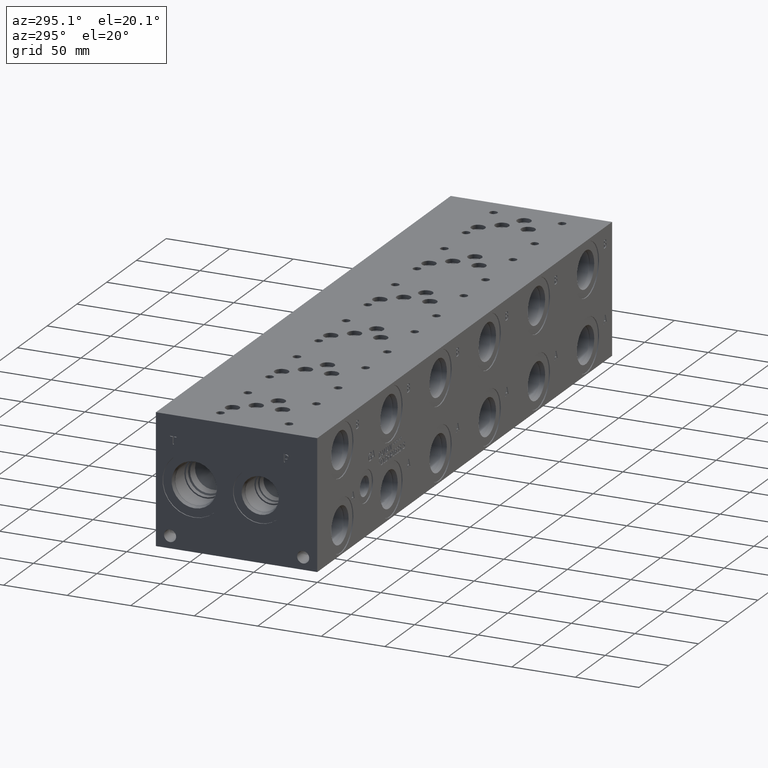
[diagram: clean part render]
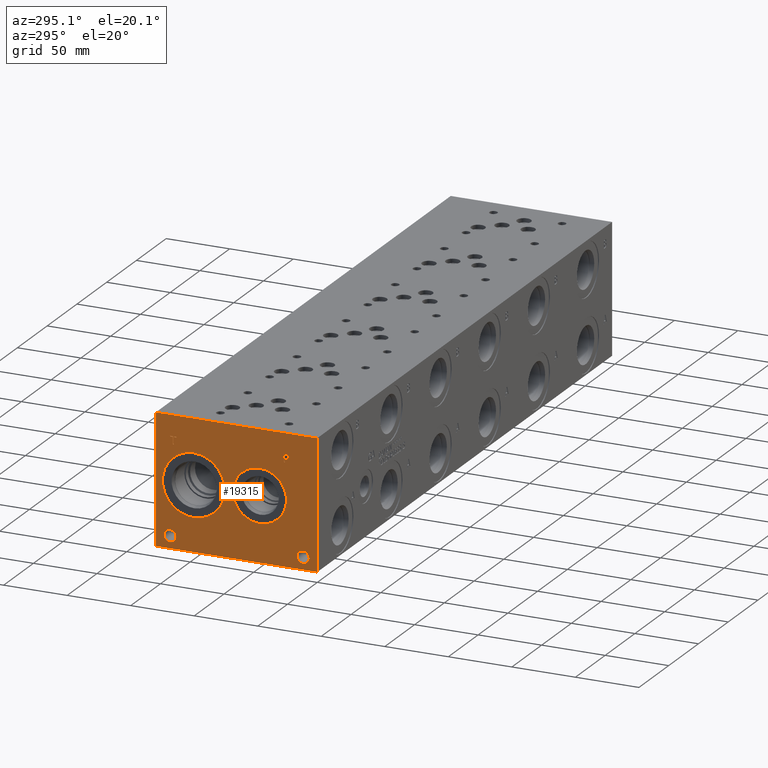
[diagram: same view with one face highlighted and labeled with its STEP entity id]
A machine part, auxiliary view. The second image highlights one B-rep face of the part: STEP entity #19315.
In plain terms, the highlighted planar face has unit normal (-1, 0, 0).
Its self-contained STEP definition (entity closure, byte-faithful):
#591=CIRCLE('',#20347,24.5618);
#592=CIRCLE('',#20348,24.5618);
#593=CIRCLE('',#20349,21.0185);
#594=CIRCLE('',#20350,21.0185);
#595=CIRCLE('',#20351,4.7625);
#596=CIRCLE('',#20352,4.7625);
#597=CIRCLE('',#20353,4.7625);
#598=CIRCLE('',#20354,4.7625);
#1463=B_SPLINE_CURVE_WITH_KNOTS('',2,(#29302,#29303,#29304,#29305),
 .UNSPECIFIED.,.F.,.F.,(3,1,3),(0.,1.,2.),.UNSPECIFIED.);
#1465=B_SPLINE_CURVE_WITH_KNOTS('',2,(#29323,#29324,#29325,#29326),
 .UNSPECIFIED.,.F.,.F.,(3,1,3),(0.,1.,2.),.UNSPECIFIED.);
#1467=B_SPLINE_CURVE_WITH_KNOTS('',2,(#29372,#29373,#29374,#29375),
 .UNSPECIFIED.,.F.,.F.,(3,1,3),(0.,1.,2.),.UNSPECIFIED.);
#1469=B_SPLINE_CURVE_WITH_KNOTS('',2,(#29390,#29391,#29392,#29393),
 .UNSPECIFIED.,.F.,.F.,(3,1,3),(0.,1.,2.),.UNSPECIFIED.);
#1763=FACE_BOUND('',#3227,.T.);
#1764=FACE_BOUND('',#3228,.T.);
#1765=FACE_BOUND('',#3229,.T.);
#1766=FACE_BOUND('',#3230,.T.);
#1767=FACE_BOUND('',#3231,.T.);
#1768=FACE_BOUND('',#3232,.T.);
#2103=FACE_OUTER_BOUND('',#3226,.T.);
#3226=EDGE_LOOP('',(#13758,#13759,#13760,#13761));
#3227=EDGE_LOOP('',(#13762,#13763));
#3228=EDGE_LOOP('',(#13764,#13765));
#3229=EDGE_LOOP('',(#13766,#13767));
#3230=EDGE_LOOP('',(#13768,#13769));
#3231=EDGE_LOOP('',(#13770,#13771,#13772,#13773,#13774,#13775,#13776,#13777));
#3232=EDGE_LOOP('',(#13778,#13779,#13780,#13781,#13782,#13783,#13784,#13785,
#13786));
#4249=LINE('',#26303,#5920);
#4820=LINE('',#29335,#6491);
#4823=LINE('',#29341,#6494);
#4826=LINE('',#29347,#6497);
#4829=LINE('',#29353,#6500);
#4832=LINE('',#29359,#6503);
#4836=LINE('',#29401,#6507);
#4837=LINE('',#29403,#6508);
#4838=LINE('',#29404,#6509);
#4839=LINE('',#29423,#6510);
#4840=LINE('',#29425,#6511);
#4841=LINE('',#29427,#6512);
#4842=LINE('',#29429,#6513);
#4843=LINE('',#29431,#6514);
#4844=LINE('',#29433,#6515);
#4845=LINE('',#29435,#6516);
#4846=LINE('',#29436,#6517);
#5920=VECTOR('',#21702,10.);
#6491=VECTOR('',#22569,10.);
#6494=VECTOR('',#22574,10.);
#6497=VECTOR('',#22579,10.);
#6500=VECTOR('',#22584,10.);
#6503=VECTOR('',#22589,10.);
#6507=VECTOR('',#22597,10.);
#6508=VECTOR('',#22598,10.);
#6509=VECTOR('',#22599,10.);
#6510=VECTOR('',#22616,10.);
#6511=VECTOR('',#22617,10.);
#6512=VECTOR('',#22618,10.);
#6513=VECTOR('',#22619,10.);
#6514=VECTOR('',#22620,10.);
#6515=VECTOR('',#22621,10.);
#6516=VECTOR('',#22622,10.);
#6517=VECTOR('',#22623,10.);
#7577=VERTEX_POINT('',#26296);
#7580=VERTEX_POINT('',#26301);
#8279=VERTEX_POINT('',#29300);
#8280=VERTEX_POINT('',#29301);
#8283=VERTEX_POINT('',#29322);
#8285=VERTEX_POINT('',#29334);
#8287=VERTEX_POINT('',#29340);
#8289=VERTEX_POINT('',#29346);
#8291=VERTEX_POINT('',#29352);
#8293=VERTEX_POINT('',#29358);
#8295=VERTEX_POINT('',#29371);
#8297=VERTEX_POINT('',#29400);
#8298=VERTEX_POINT('',#29402);
#8299=VERTEX_POINT('',#29405);
#8300=VERTEX_POINT('',#29406);
#8301=VERTEX_POINT('',#29409);
#8302=VERTEX_POINT('',#29410);
#8303=VERTEX_POINT('',#29413);
#8304=VERTEX_POINT('',#29414);
#8305=VERTEX_POINT('',#29417);
#8306=VERTEX_POINT('',#29418);
#8307=VERTEX_POINT('',#29421);
#8308=VERTEX_POINT('',#29422);
#8309=VERTEX_POINT('',#29424);
#8310=VERTEX_POINT('',#29426);
#8311=VERTEX_POINT('',#29428);
#8312=VERTEX_POINT('',#29430);
#8313=VERTEX_POINT('',#29432);
#8314=VERTEX_POINT('',#29434);
#9551=EDGE_CURVE('',#7577,#7580,#4249,.T.);
#10411=EDGE_CURVE('',#8279,#8280,#1463,.T.);
#10415=EDGE_CURVE('',#8283,#8279,#1465,.T.);
#10418=EDGE_CURVE('',#8285,#8283,#4820,.T.);
#10421=EDGE_CURVE('',#8287,#8285,#4823,.T.);
#10424=EDGE_CURVE('',#8289,#8287,#4826,.T.);
#10427=EDGE_CURVE('',#8291,#8289,#4829,.T.);
#10430=EDGE_CURVE('',#8293,#8291,#4832,.T.);
#10433=EDGE_CURVE('',#8295,#8293,#1467,.T.);
#10436=EDGE_CURVE('',#8280,#8295,#1469,.T.);
#10438=EDGE_CURVE('',#8297,#7577,#4836,.T.);
#10439=EDGE_CURVE('',#8298,#7580,#4837,.T.);
#10440=EDGE_CURVE('',#8297,#8298,#4838,.T.);
#10441=EDGE_CURVE('',#8299,#8300,#591,.T.);
#10442=EDGE_CURVE('',#8300,#8299,#592,.T.);
#10443=EDGE_CURVE('',#8301,#8302,#593,.T.);
#10444=EDGE_CURVE('',#8302,#8301,#594,.T.);
#10445=EDGE_CURVE('',#8303,#8304,#595,.T.);
#10446=EDGE_CURVE('',#8304,#8303,#596,.T.);
#10447=EDGE_CURVE('',#8305,#8306,#597,.T.);
#10448=EDGE_CURVE('',#8306,#8305,#598,.T.);
#10449=EDGE_CURVE('',#8307,#8308,#4839,.T.);
#10450=EDGE_CURVE('',#8308,#8309,#4840,.T.);
#10451=EDGE_CURVE('',#8309,#8310,#4841,.T.);
#10452=EDGE_CURVE('',#8310,#8311,#4842,.T.);
#10453=EDGE_CURVE('',#8311,#8312,#4843,.T.);
#10454=EDGE_CURVE('',#8312,#8313,#4844,.T.);
#10455=EDGE_CURVE('',#8313,#8314,#4845,.T.);
#10456=EDGE_CURVE('',#8314,#8307,#4846,.T.);
#13758=ORIENTED_EDGE('',*,*,#10438,.T.);
#13759=ORIENTED_EDGE('',*,*,#9551,.T.);
#13760=ORIENTED_EDGE('',*,*,#10439,.F.);
#13761=ORIENTED_EDGE('',*,*,#10440,.F.);
#13762=ORIENTED_EDGE('',*,*,#10441,.T.);
#13763=ORIENTED_EDGE('',*,*,#10442,.T.);
#13764=ORIENTED_EDGE('',*,*,#10443,.T.);
#13765=ORIENTED_EDGE('',*,*,#10444,.T.);
#13766=ORIENTED_EDGE('',*,*,#10445,.T.);
#13767=ORIENTED_EDGE('',*,*,#10446,.T.);
#13768=ORIENTED_EDGE('',*,*,#10447,.T.);
#13769=ORIENTED_EDGE('',*,*,#10448,.T.);
#13770=ORIENTED_EDGE('',*,*,#10449,.T.);
#13771=ORIENTED_EDGE('',*,*,#10450,.T.);
#13772=ORIENTED_EDGE('',*,*,#10451,.T.);
#13773=ORIENTED_EDGE('',*,*,#10452,.T.);
#13774=ORIENTED_EDGE('',*,*,#10453,.T.);
#13775=ORIENTED_EDGE('',*,*,#10454,.T.);
#13776=ORIENTED_EDGE('',*,*,#10455,.T.);
#13777=ORIENTED_EDGE('',*,*,#10456,.T.);
#13778=ORIENTED_EDGE('',*,*,#10411,.T.);
#13779=ORIENTED_EDGE('',*,*,#10436,.T.);
#13780=ORIENTED_EDGE('',*,*,#10433,.T.);
#13781=ORIENTED_EDGE('',*,*,#10430,.T.);
#13782=ORIENTED_EDGE('',*,*,#10427,.T.);
#13783=ORIENTED_EDGE('',*,*,#10424,.T.);
#13784=ORIENTED_EDGE('',*,*,#10421,.T.);
#13785=ORIENTED_EDGE('',*,*,#10418,.T.);
#13786=ORIENTED_EDGE('',*,*,#10415,.T.);
#18074=PLANE('',#20346);
#19315=ADVANCED_FACE('',(#2103,#1763,#1764,#1765,#1766,#1767,#1768),#18074,
 .T.);
#20346=AXIS2_PLACEMENT_3D('',#29399,#22595,#22596);
#20347=AXIS2_PLACEMENT_3D('',#29407,#22600,#22601);
#20348=AXIS2_PLACEMENT_3D('',#29408,#22602,#22603);
#20349=AXIS2_PLACEMENT_3D('',#29411,#22604,#22605);
#20350=AXIS2_PLACEMENT_3D('',#29412,#22606,#22607);
#20351=AXIS2_PLACEMENT_3D('',#29415,#22608,#22609);
#20352=AXIS2_PLACEMENT_3D('',#29416,#22610,#22611);
#20353=AXIS2_PLACEMENT_3D('',#29419,#22612,#22613);
#20354=AXIS2_PLACEMENT_3D('',#29420,#22614,#22615);
#21702=DIRECTION('',(0.,0.,1.));
#22569=DIRECTION('',(0.,-1.,0.));
#22574=DIRECTION('',(0.,-3.49676548440641E-15,1.));
#22579=DIRECTION('',(0.,1.,1.05244112384329E-14));
#22584=DIRECTION('',(0.,3.75218139804999E-15,-1.));
#22589=DIRECTION('',(0.,1.,0.));
#22595=DIRECTION('center_axis',(-1.,0.,0.));
#22596=DIRECTION('ref_axis',(0.,-1.,0.));
#22597=DIRECTION('',(0.,-1.,0.));
#22598=DIRECTION('',(0.,-1.,0.));
#22599=DIRECTION('',(0.,0.,1.));
#22600=DIRECTION('center_axis',(1.,0.,0.));
#22601=DIRECTION('ref_axis',(0.,0.,1.));
#22602=DIRECTION('center_axis',(1.,0.,0.));
#22603=DIRECTION('ref_axis',(0.,0.,1.));
#22604=DIRECTION('center_axis',(1.,0.,0.));
#22605=DIRECTION('ref_axis',(0.,0.,1.));
#22606=DIRECTION('center_axis',(1.,0.,0.));
#22607=DIRECTION('ref_axis',(0.,0.,1.));
#22608=DIRECTION('center_axis',(1.,0.,0.));
#22609=DIRECTION('ref_axis',(0.,1.,0.));
#22610=DIRECTION('center_axis',(1.,0.,0.));
#22611=DIRECTION('ref_axis',(0.,1.,0.));
#22612=DIRECTION('center_axis',(1.,0.,0.));
#22613=DIRECTION('ref_axis',(0.,1.,0.));
#22614=DIRECTION('center_axis',(1.,0.,0.));
#22615=DIRECTION('ref_axis',(0.,1.,0.));
#22616=DIRECTION('',(0.,1.,0.));
#22617=DIRECTION('',(0.,-3.17280044688051E-15,1.));
#22618=DIRECTION('',(0.,1.,0.));
#22619=DIRECTION('',(0.,0.,1.));
#22620=DIRECTION('',(0.,-1.,-3.47984565141734E-15));
#22621=DIRECTION('',(0.,0.,-1.));
#22622=DIRECTION('',(0.,1.,8.33818088455555E-15));
#22623=DIRECTION('',(0.,3.17280044688051E-15,-1.));
#26296=CARTESIAN_POINT('',(0.,0.,0.));
#26301=CARTESIAN_POINT('',(0.,0.,101.6));
#26303=CARTESIAN_POINT('',(0.,0.,0.));
#29300=CARTESIAN_POINT('',(0.,23.0869327976406,85.3287681439707));
#29301=CARTESIAN_POINT('',(0.,22.330490345468,83.8107373726039));
#29302=CARTESIAN_POINT('Ctrl Pts',(0.,23.0869327976406,85.3287681439707));
#29303=CARTESIAN_POINT('Ctrl Pts',(0.,22.7318679731514,85.0869123939563));
#29304=CARTESIAN_POINT('Ctrl Pts',(0.,22.330490345468,84.3407616758269));
#29305=CARTESIAN_POINT('Ctrl Pts',(0.,22.330490345468,83.8107373726039));
#29322=CARTESIAN_POINT('',(0.,24.7490478456117,85.7249999046326));
#29323=CARTESIAN_POINT('Ctrl Pts',(0.,24.7490478456117,85.7249999046326));
#29324=CARTESIAN_POINT('Ctrl Pts',(0.,24.1830024732376,85.7249999046326));
#29325=CARTESIAN_POINT('Ctrl Pts',(0.,23.3905389519139,85.5397486918556));
#29326=CARTESIAN_POINT('Ctrl Pts',(0.,23.0869327976406,85.3287681439707));
#29334=CARTESIAN_POINT('',(0.,26.3442666223022,85.7249999046326));
#29335=CARTESIAN_POINT('',(0.,76.6721333111511,85.7249999046326));
#29340=CARTESIAN_POINT('',(0.,26.3442666223022,79.375));
#29341=CARTESIAN_POINT('',(0.,26.3442666223024,39.6874999999998));
#29346=CARTESIAN_POINT('',(0.,25.5003444307627,79.375));
#29347=CARTESIAN_POINT('',(0.,76.250172215381,79.3750000000005));
#29352=CARTESIAN_POINT('',(0.,25.5003444307627,81.7420988299279));
#29353=CARTESIAN_POINT('',(0.,25.5003444307629,40.8710494149637));
#29358=CARTESIAN_POINT('',(0.,24.7850689147628,81.7420988299279));
#29359=CARTESIAN_POINT('',(0.,75.8925344573814,81.7420988299279));
#29371=CARTESIAN_POINT('',(0.,22.8862439837989,82.4007698086904));
#29372=CARTESIAN_POINT('Ctrl Pts',(0.,22.8862439837989,82.4007698086904));
#29373=CARTESIAN_POINT('Ctrl Pts',(0.,23.2155794731802,82.0765801863307));
#29374=CARTESIAN_POINT('Ctrl Pts',(0.,24.1058144679139,81.7420988299278));
#29375=CARTESIAN_POINT('Ctrl Pts',(0.,24.7850689147628,81.7420988299279));
#29390=CARTESIAN_POINT('Ctrl Pts',(0.,22.330490345468,83.8107373726039));
#29391=CARTESIAN_POINT('Ctrl Pts',(0.,22.330490345468,83.3990680108774));
#29392=CARTESIAN_POINT('Ctrl Pts',(0.,22.6238047656982,82.6580631597695));
#29393=CARTESIAN_POINT('Ctrl Pts',(0.,22.8862439837989,82.4007698086904));
#29399=CARTESIAN_POINT('Origin',(0.,127.,0.));
#29400=CARTESIAN_POINT('',(0.,127.,0.));
#29401=CARTESIAN_POINT('',(0.,127.,0.));
#29402=CARTESIAN_POINT('',(0.,127.,101.6));
#29403=CARTESIAN_POINT('',(0.,127.,101.6));
#29404=CARTESIAN_POINT('',(0.,127.,0.));
#29405=CARTESIAN_POINT('',(0.,97.2566,75.3618));
#29406=CARTESIAN_POINT('',(6.93889390390723E-17,97.2566,26.2382));
#29407=CARTESIAN_POINT('Origin',(0.,97.2566,50.8));
#29408=CARTESIAN_POINT('Origin',(0.,97.2566,50.8));
#29409=CARTESIAN_POINT('',(0.,45.2882,71.8185));
#29410=CARTESIAN_POINT('',(0.,45.2882,29.7815));
#29411=CARTESIAN_POINT('Origin',(0.,45.2882,50.8));
#29412=CARTESIAN_POINT('Origin',(0.,45.2882,50.8));
#29413=CARTESIAN_POINT('',(0.,15.8877,9.52500000000001));
#29414=CARTESIAN_POINT('',(0.,6.3627,9.52500000000001));
#29415=CARTESIAN_POINT('Origin',(0.,11.1252,9.52500000000001));
#29416=CARTESIAN_POINT('Origin',(0.,11.1252,9.52500000000001));
#29417=CARTESIAN_POINT('',(0.,120.6373,9.52500000000001));
#29418=CARTESIAN_POINT('',(0.,111.1123,9.52500000000001));
#29419=CARTESIAN_POINT('Origin',(0.,115.8748,9.52500000000001));
#29420=CARTESIAN_POINT('Origin',(0.,115.8748,9.52500000000001));
#29421=CARTESIAN_POINT('',(0.,112.918334728547,79.375));
#29422=CARTESIAN_POINT('',(0.,113.762256920087,79.375));
#29423=CARTESIAN_POINT('',(0.,119.959167364273,79.375));
#29424=CARTESIAN_POINT('',(0.,113.762256920086,84.9737033194815));
#29425=CARTESIAN_POINT('',(0.,113.762256920087,39.6875));
#29426=CARTESIAN_POINT('',(0.,115.892645867022,84.9737033194815));
#29427=CARTESIAN_POINT('',(0.,120.381128460043,84.9737033194815));
#29428=CARTESIAN_POINT('',(0.,115.892645867022,85.7249999046326));
#29429=CARTESIAN_POINT('',(0.,115.892645867022,42.4868516597408));
#29430=CARTESIAN_POINT('',(0.,110.787945781612,85.7249999046326));
#29431=CARTESIAN_POINT('',(0.,121.446322933511,85.7249999046326));
#29432=CARTESIAN_POINT('',(0.,110.787945781612,84.9737033194815));
#29433=CARTESIAN_POINT('',(0.,110.787945781612,42.8624999523163));
#29434=CARTESIAN_POINT('',(0.,112.918334728547,84.9737033194815));
#29435=CARTESIAN_POINT('',(0.,118.893972890806,84.9737033194816));
#29436=CARTESIAN_POINT('',(0.,112.918334728547,42.4868516597407));